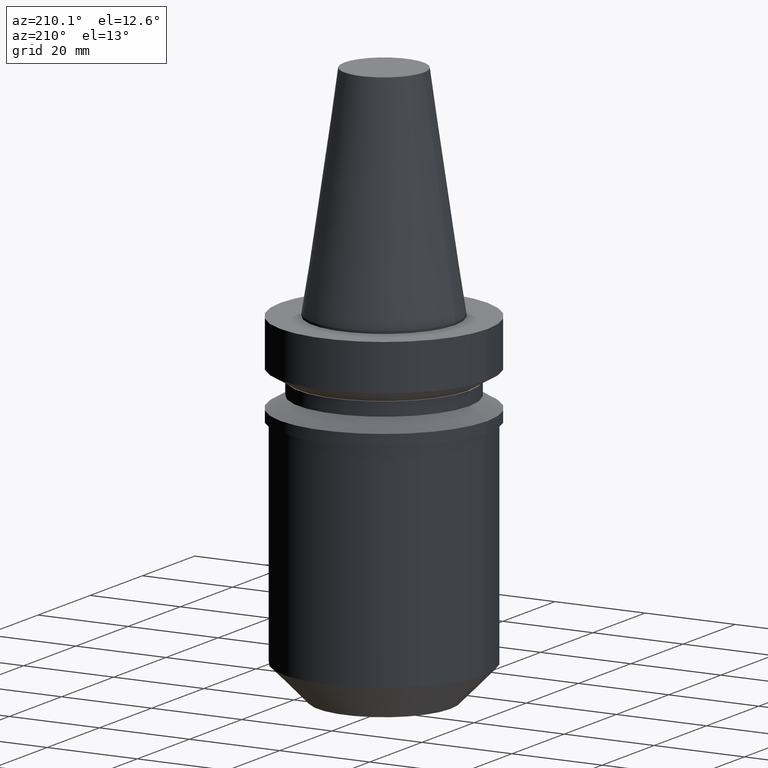
[diagram: clean part render]
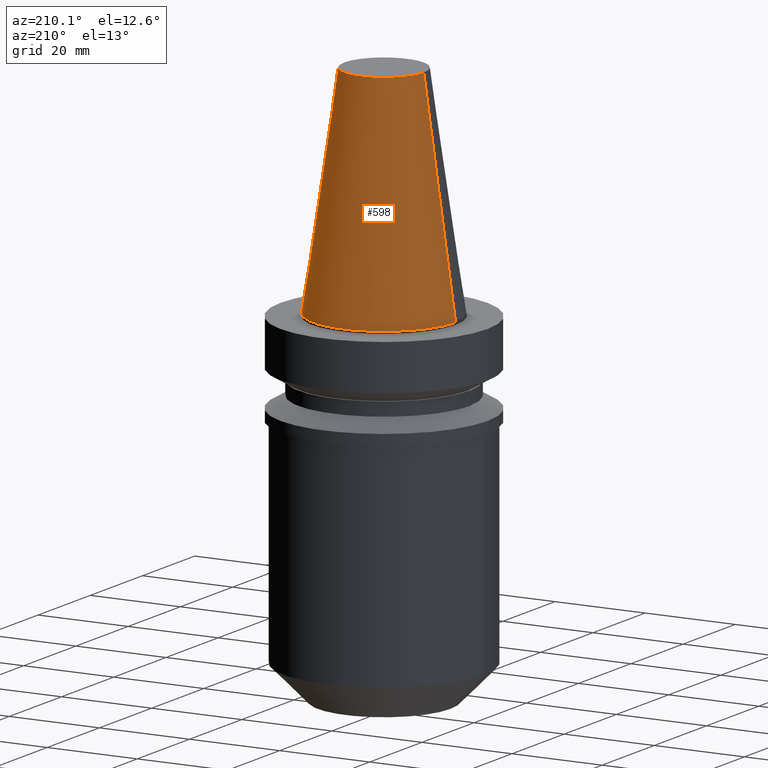
[diagram: same view with one face highlighted and labeled with its STEP entity id]
A machine part, auxiliary view. The second image highlights one B-rep face of the part: STEP entity #598.
In plain terms, the highlighted conical surface has half-angle 8.297 deg.
Its self-contained STEP definition (entity closure, byte-faithful):
#23 = ORIENTED_EDGE ( 'NONE', *, *, #261, .F. ) ;
#26 = DIRECTION ( 'NONE',  ( -1.000000000000000000, 0.000000000000000000, 0.000000000000000000 ) ) ;
#39 = CARTESIAN_POINT ( 'NONE',  ( 0.000000000000000000, 0.000000000000000000, 0.000000000000000000 ) ) ;
#56 = CARTESIAN_POINT ( 'NONE',  ( 15.87500000000000000, 1.944126793646423238E-15, 0.000000000000000000 ) ) ;
#58 = EDGE_LOOP ( 'NONE', ( #23, #643, #698, #466 ) ) ;
#66 = CIRCLE ( 'NONE', #461, 8.816600212367498912 ) ;
#71 = EDGE_CURVE ( 'NONE', #381, #722, #393, .T. ) ;
#90 = VECTOR ( 'NONE', #347, 1000.000000000000114 ) ;
#114 = AXIS2_PLACEMENT_3D ( 'NONE', #39, #332, #26 ) ;
#116 = LINE ( 'NONE', #56, #189 ) ;
#144 = DIRECTION ( 'NONE',  ( 1.000000000000000000, 0.000000000000000000, 0.000000000000000000 ) ) ;
#156 = CARTESIAN_POINT ( 'NONE',  ( 0.000000000000000000, 0.000000000000000000, 48.39999999999999858 ) ) ;
#180 = CARTESIAN_POINT ( 'NONE',  ( -15.87500000000000000, 0.000000000000000000, 0.000000000000000000 ) ) ;
#189 = VECTOR ( 'NONE', #288, 1000.000000000000114 ) ;
#261 = EDGE_CURVE ( 'NONE', #506, #682, #66, .T. ) ;
#288 = DIRECTION ( 'NONE',  ( 0.1443082234293875943, 1.767266039134405996E-17, -0.9895327870518761948 ) ) ;
#318 = FACE_OUTER_BOUND ( 'NONE', #58, .T. ) ;
#332 = DIRECTION ( 'NONE',  ( 0.000000000000000000, 0.000000000000000000, -1.000000000000000000 ) ) ;
#347 = DIRECTION ( 'NONE',  ( -0.1443082234293875943, 0.000000000000000000, -0.9895327870518761948 ) ) ;
#370 = CARTESIAN_POINT ( 'NONE',  ( 8.816600212367498912, 1.511924458295098338E-15, 48.39999999999999858 ) ) ;
#381 = VERTEX_POINT ( 'NONE', #601 ) ;
#393 = CIRCLE ( 'NONE', #508, 15.87500000000000000 ) ;
#417 = LINE ( 'NONE', #180, #90 ) ;
#444 = EDGE_CURVE ( 'NONE', #682, #722, #417, .T. ) ;
#459 = EDGE_CURVE ( 'NONE', #506, #381, #116, .T. ) ;
#461 = AXIS2_PLACEMENT_3D ( 'NONE', #156, #700, #637 ) ;
#466 = ORIENTED_EDGE ( 'NONE', *, *, #444, .F. ) ;
#488 = CARTESIAN_POINT ( 'NONE',  ( -15.87500000000000000, 0.000000000000000000, 0.000000000000000000 ) ) ;
#492 = CONICAL_SURFACE ( 'NONE', #114, 15.87500000000000000, 0.1448138426689024039 ) ;
#506 = VERTEX_POINT ( 'NONE', #370 ) ;
#508 = AXIS2_PLACEMENT_3D ( 'NONE', #767, #661, #144 ) ;
#540 = CARTESIAN_POINT ( 'NONE',  ( -8.816600212367498912, 0.000000000000000000, 48.39999999999999858 ) ) ;
#598 = ADVANCED_FACE ( 'NONE', ( #318 ), #492, .T. ) ;
#601 = CARTESIAN_POINT ( 'NONE',  ( 15.87500000000000000, 1.944126793646423238E-15, 0.000000000000000000 ) ) ;
#637 = DIRECTION ( 'NONE',  ( 1.000000000000000000, 0.000000000000000000, 0.000000000000000000 ) ) ;
#643 = ORIENTED_EDGE ( 'NONE', *, *, #459, .T. ) ;
#661 = DIRECTION ( 'NONE',  ( -0.000000000000000000, -0.000000000000000000, 1.000000000000000000 ) ) ;
#682 = VERTEX_POINT ( 'NONE', #540 ) ;
#698 = ORIENTED_EDGE ( 'NONE', *, *, #71, .T. ) ;
#700 = DIRECTION ( 'NONE',  ( -0.000000000000000000, -0.000000000000000000, 1.000000000000000000 ) ) ;
#722 = VERTEX_POINT ( 'NONE', #488 ) ;
#767 = CARTESIAN_POINT ( 'NONE',  ( 0.000000000000000000, 0.000000000000000000, 0.000000000000000000 ) ) ;